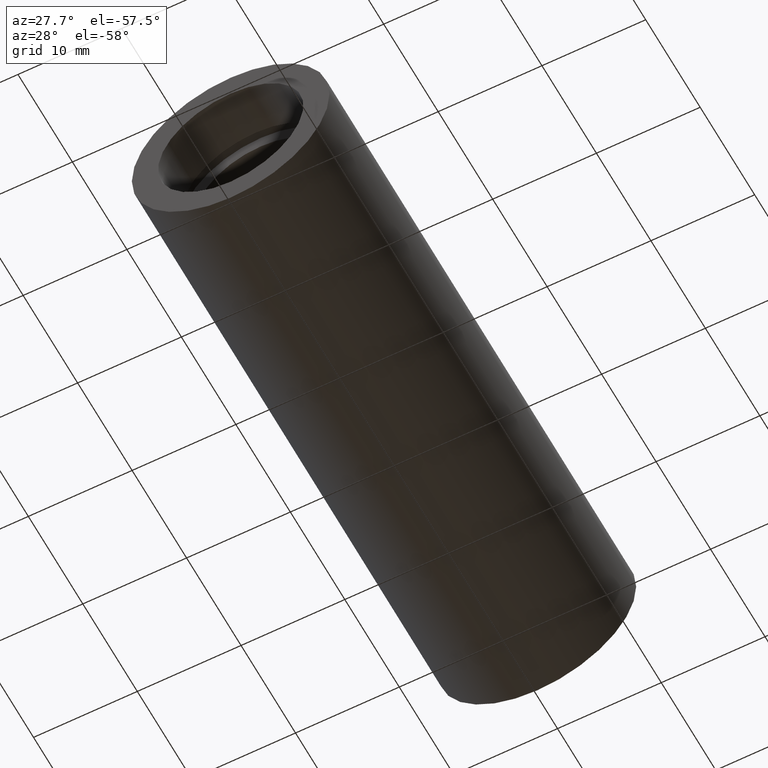
[diagram: clean part render]
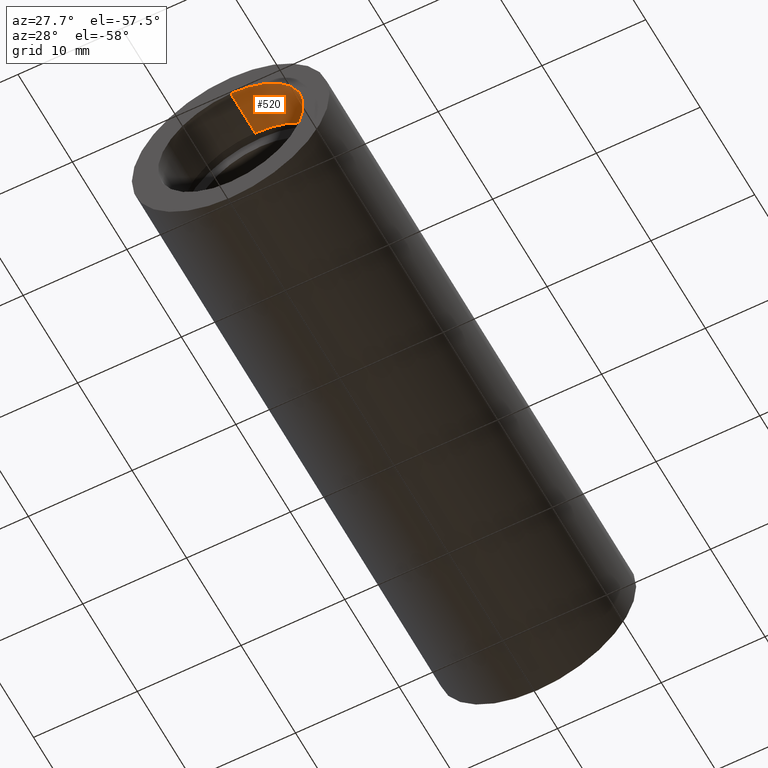
[diagram: same view with one face highlighted and labeled with its STEP entity id]
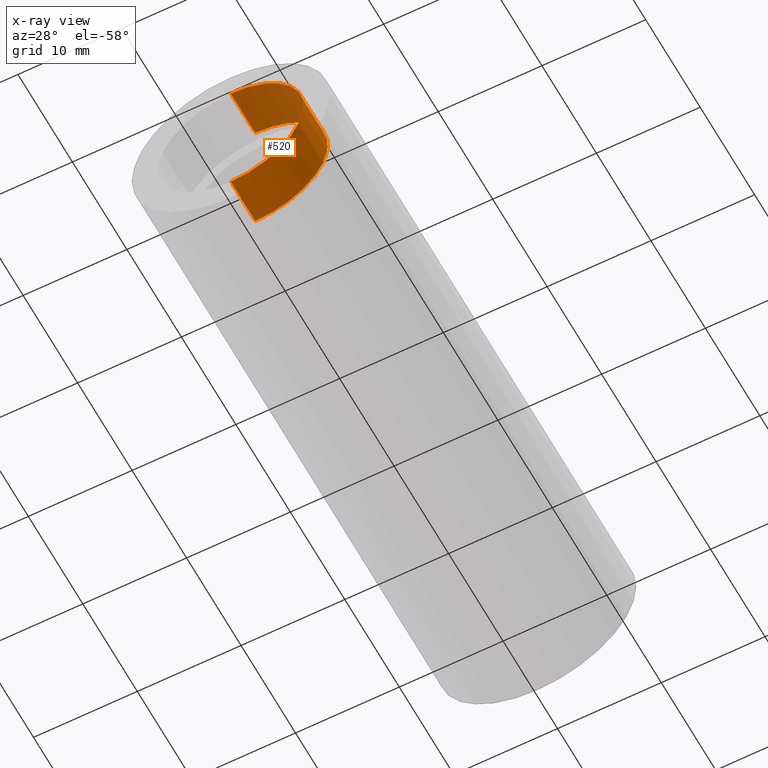
[diagram: x-ray of the same camera — body ghosted, the highlighted face saturated]
A machine part, auxiliary view. The second image highlights one B-rep face of the part: STEP entity #520.
The next image is the same camera in x-ray: the body ghosted, the highlighted face saturated — about 0% of this face is hidden behind the body in this view.
In plain terms, the highlighted cylindrical surface (partial cylindrical patch) has radius 7 mm, axis along (-0, 1, -0).
Its self-contained STEP definition (entity closure, byte-faithful):
#1 = DIRECTION ( 'NONE',  ( 0.0000000000000000000, 0.0000000000000000000, 1.000000000000000000 ) ) ;
#13 = ORIENTED_EDGE ( 'NONE', *, *, #424, .F. ) ;
#16 = LINE ( 'NONE', #252, #491 ) ;
#25 = ORIENTED_EDGE ( 'NONE', *, *, #170, .T. ) ;
#56 = DIRECTION ( 'NONE',  ( -0.0000000000000000000, 1.000000000000000000, -0.0000000000000000000 ) ) ;
#105 = DIRECTION ( 'NONE',  ( 0.0000000000000000000, 0.0000000000000000000, 1.000000000000000000 ) ) ;
#116 = VERTEX_POINT ( 'NONE', #177 ) ;
#130 = CYLINDRICAL_SURFACE ( 'NONE', #574, 7.000000000000020400 ) ;
#139 = CIRCLE ( 'NONE', #513, 7.000000000000020400 ) ;
#143 = DIRECTION ( 'NONE',  ( -0.0000000000000000000, 1.000000000000000000, -0.0000000000000000000 ) ) ;
#163 = ORIENTED_EDGE ( 'NONE', *, *, #364, .F. ) ;
#168 = LINE ( 'NONE', #273, #218 ) ;
#170 = EDGE_CURVE ( 'NONE', #200, #116, #168, .T. ) ;
#177 = CARTESIAN_POINT ( 'NONE',  ( 0.0000000000000000000, 4.499999999999976000, 7.000000000000020400 ) ) ;
#178 = CARTESIAN_POINT ( 'NONE',  ( 8.572527594031496900E-016, -2.775557561562891400E-014, -7.000000000000020400 ) ) ;
#187 = EDGE_LOOP ( 'NONE', ( #13, #163, #25, #551 ) ) ;
#200 = VERTEX_POINT ( 'NONE', #228 ) ;
#206 = EDGE_CURVE ( 'NONE', #116, #379, #139, .T. ) ;
#213 = VERTEX_POINT ( 'NONE', #178 ) ;
#218 = VECTOR ( 'NONE', #507, 1000.000000000000000 ) ;
#228 = CARTESIAN_POINT ( 'NONE',  ( 0.0000000000000000000, -2.775557561562891400E-014, 7.000000000000020400 ) ) ;
#252 = CARTESIAN_POINT ( 'NONE',  ( 8.572527594031496900E-016, 161.3761669434274500, -7.000000000000020400 ) ) ;
#271 = FACE_OUTER_BOUND ( 'NONE', #187, .T. ) ;
#272 = CARTESIAN_POINT ( 'NONE',  ( 0.0000000000000000000, 4.499999999999976000, 0.0000000000000000000 ) ) ;
#273 = CARTESIAN_POINT ( 'NONE',  ( 0.0000000000000000000, 161.3761669434274500, 7.000000000000020400 ) ) ;
#316 = AXIS2_PLACEMENT_3D ( 'NONE', #521, #143, #105 ) ;
#322 = CIRCLE ( 'NONE', #316, 7.000000000000020400 ) ;
#364 = EDGE_CURVE ( 'NONE', #200, #213, #322, .T. ) ;
#379 = VERTEX_POINT ( 'NONE', #439 ) ;
#424 = EDGE_CURVE ( 'NONE', #213, #379, #16, .T. ) ;
#439 = CARTESIAN_POINT ( 'NONE',  ( 8.572527594031496900E-016, 4.499999999999976000, -7.000000000000020400 ) ) ;
#464 = DIRECTION ( 'NONE',  ( 0.0000000000000000000, 0.0000000000000000000, 1.000000000000000000 ) ) ;
#491 = VECTOR ( 'NONE', #56, 1000.000000000000000 ) ;
#507 = DIRECTION ( 'NONE',  ( -0.0000000000000000000, 1.000000000000000000, -0.0000000000000000000 ) ) ;
#513 = AXIS2_PLACEMENT_3D ( 'NONE', #272, #611, #464 ) ;
#520 = ADVANCED_FACE ( 'NONE', ( #271 ), #130, .F. ) ;
#521 = CARTESIAN_POINT ( 'NONE',  ( 0.0000000000000000000, -2.775557561562891400E-014, 0.0000000000000000000 ) ) ;
#524 = DIRECTION ( 'NONE',  ( -0.0000000000000000000, 1.000000000000000000, -0.0000000000000000000 ) ) ;
#526 = CARTESIAN_POINT ( 'NONE',  ( 0.0000000000000000000, 161.3761669434274500, 0.0000000000000000000 ) ) ;
#551 = ORIENTED_EDGE ( 'NONE', *, *, #206, .T. ) ;
#574 = AXIS2_PLACEMENT_3D ( 'NONE', #526, #524, #1 ) ;
#611 = DIRECTION ( 'NONE',  ( -0.0000000000000000000, 1.000000000000000000, -0.0000000000000000000 ) ) ;